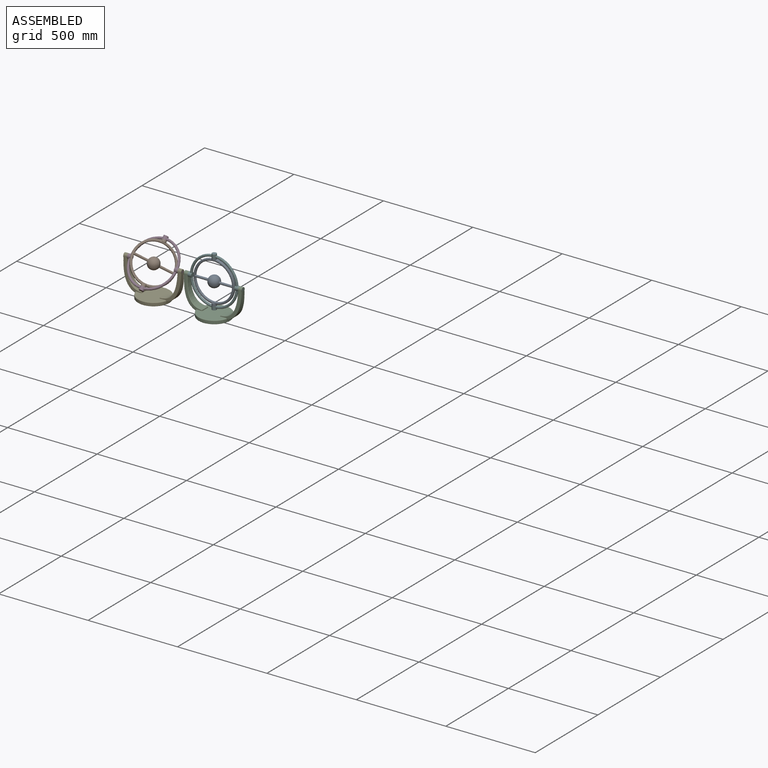
[diagram: assembled view]
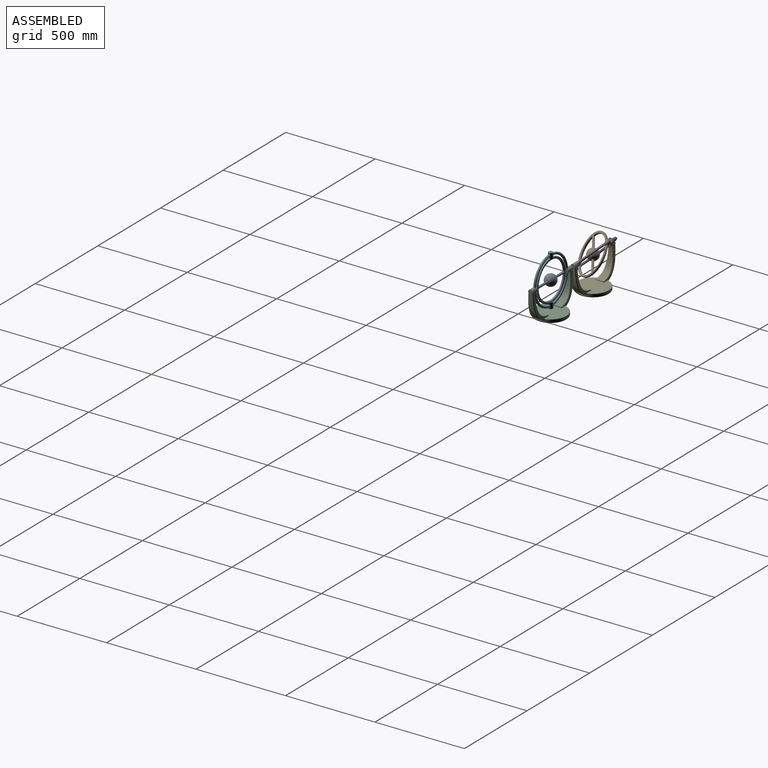
[diagram: assembled view, second angle]
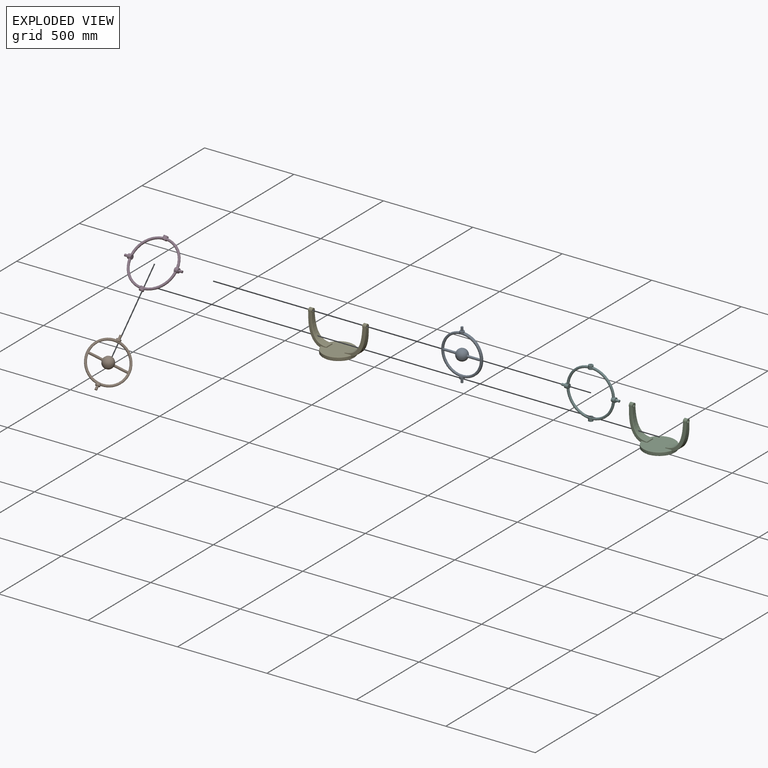
[diagram: exploded view]
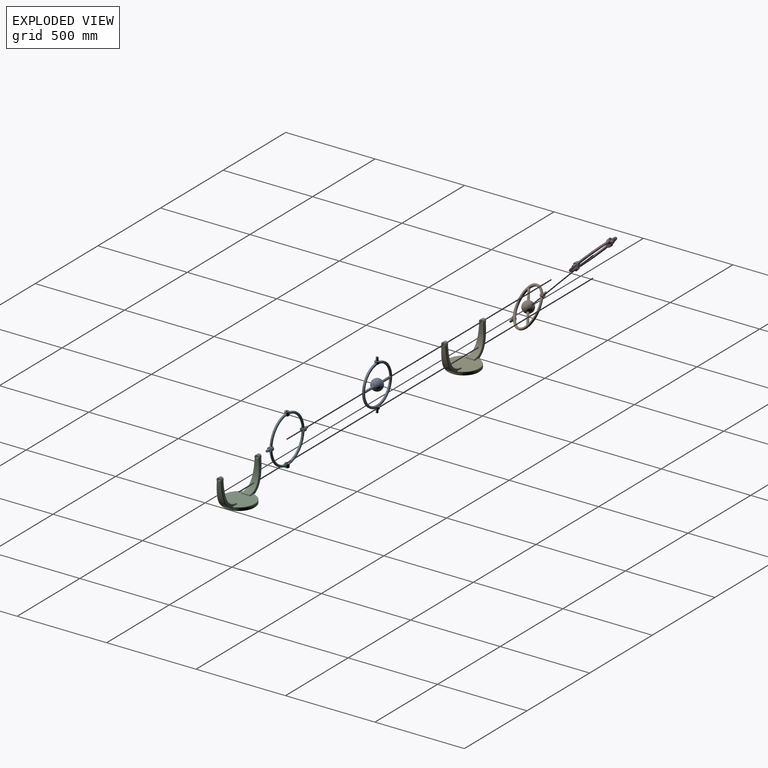
[diagram: exploded view, second angle]
ASSEMBLY  parts=6 mates=4
PART A: 36 faces, bbox 254.2x288.7x69.9 mm
  f0: cylinder r=101.78mm len=203.17mm, axis (0,0,1), area 780.5mm2, adj f18,f19,f22,f34
  f1: cylinder r=101.78mm len=203.17mm, axis (0,0,1), area 780.5mm2, adj f18,f19,f25,f28
  f2: cylinder r=114.48mm len=227.89mm, axis (0,0,1), area 2553.6mm2, adj f4,f6,f12,f32
  f3: cylinder r=114.48mm len=227.55mm, axis (0,0,1), area 849.2mm2, adj f6,f12,f30,f31
  f4: plane 234.27x230.25mm, normal (0,0,-1), area 3391.2mm2, adj f2,f6,f7,f12,f13,f21,f22,f23
  f5: plane 225.17x224.06mm, normal (0,0,1), area 1716.7mm2, adj f6,f9,f12,f15,f24,f25,f26,f31
  f6: cylinder r=12.7mm len=25.4mm, axis (0,1,0), area 879.8mm2, adj f2,f3,f4,f5,f7,f8,f9,f30
  f7: plane 22x6.35mm, normal (0,1,0), area 99.1mm2, adj f4,f6
  f8: plane 25.4x25.4mm, normal (0,-1,0), area 380mm2, adj f6,f10
  f9: plane 22x6.35mm, normal (0,1,0), area 99.1mm2, adj f5,f6
  f10: cylinder r=6.35mm len=20.32mm, axis (0,1,0), area 810.7mm2, adj f8,f11
  f11: plane 12.7x12.7mm, normal (0,-1,0), area 126.7mm2, adj f10
  f12: cylinder r=12.7mm len=25.4mm, axis (0,-1,0), area 879.8mm2, adj f2,f3,f4,f5,f13,f14,f15,f30
  f13: plane 22x6.35mm, normal (0,-1,0), area 99.1mm2, adj f4,f12
  f14: plane 25.4x25.4mm, normal (0,1,0), area 380mm2, adj f12,f16
  f15: plane 22x6.35mm, normal (0,-1,0), area 99.1mm2, adj f5,f12
  f16: cylinder r=6.35mm len=20.32mm, axis (0,-1,0), area 810.7mm2, adj f14,f17
  f17: plane 12.7x12.7mm, normal (0,1,0), area 126.7mm2, adj f16
  f18: cylinder r=6.35mm len=70.67mm, axis (-1,0,0), area 2815.2mm2, adj f0,f1,f20,f21,f26,f29,f33
  f19: cylinder r=6.35mm len=70.67mm, axis (-1,0,0), area 2815.2mm2, adj f0,f1,f20,f23,f24,f27,f35
  f20: sphere r=31.75mm, area 12539.7mm2, adj f18,f19
  f21: bspline ~7.15x5.2mm, area 11.3mm2, adj f4,f18,f22
  f22: torus R=106.86mm, axis (0,0,1), area 2496.5mm2, adj f0,f4,f21,f23
  f23: bspline ~7.67x5.29mm, area 17.3mm2, adj f4,f19,f22
  f24: bspline ~7.67x5.28mm, area 17.3mm2, adj f5,f19,f25
  f25: torus R=106.86mm, axis (0,0,1), area 2496.5mm2, adj f1,f5,f24,f26
  f26: bspline ~7.15x5.2mm, area 11.3mm2, adj f5,f18,f25
  f27: bspline ~7.15x5.2mm, area 11.3mm2, adj f4,f19,f28
  f28: torus R=106.86mm, axis (0,0,1), area 2496.5mm2, adj f1,f4,f27,f29
  f29: bspline ~7.67x5.29mm, area 17.3mm2, adj f4,f18,f28
  f30: torus R=109.4mm, axis (0,0,1), area 2635.5mm2, adj f3,f4,f6,f12
  f31: torus R=109.4mm, axis (0,0,1), area 2635.5mm2, adj f3,f5,f6,f12
  f32: torus R=109.4mm, axis (0,0,1), area 2635.5mm2, adj f2,f5,f6,f12
  f33: bspline ~7.67x5.28mm, area 17.3mm2, adj f5,f18,f34
  f34: torus R=106.86mm, axis (0,0,1), area 2496.5mm2, adj f0,f5,f33,f35
  f35: bspline ~7.15x5.2mm, area 11.3mm2, adj f5,f19,f34
PART B: same geometry as A
PART C: 70 faces, bbox 323.3x192.4x198 mm
  f0: cylinder r=88.9mm len=177.8mm, axis (0,0,1), area 7043.1mm2, adj f31,f35,f42,f43,f44,f46,f47,f51
  f1: plane 25.4x25.4mm, normal (1,0,0), area 380mm2, adj f3,f4,f23,f24
  f2: plane 25.4x25.4mm, normal (-1,0,0), area 380mm2, adj f6,f7,f21,f22
  f3: cylinder r=12.7mm len=25.4mm, axis (-1,0,0), area 856.7mm2, adj f1,f4,f5,f10,f11,f12,f40,f41
  f4: cylinder r=12.7mm len=6.69mm, axis (-1,0,0), area 11.6mm2, adj f1,f3,f54
  f5: plane 25.4x25.4mm, normal (-1,0,0), area 380mm2, adj f3,f24
  f6: cylinder r=12.7mm len=25.4mm, axis (1,0,0), area 856.7mm2, adj f2,f7,f8,f15,f16,f17,f25,f30
  f7: cylinder r=12.7mm len=6.69mm, axis (1,0,0), area 11.6mm2, adj f2,f6,f29
  f8: plane 25.4x25.4mm, normal (1,0,0), area 380mm2, adj f6,f21
  f9: plane 43.78x1.28mm, normal (1,0,0), area 56.1mm2, adj f55,f56,f64,f65
  f10: bspline ~169.06x110.67mm, area 2553.4mm2, adj f3,f40,f41,f43,f49,f56,f57
  f11: bspline ~169.06x110.67mm, area 2553.5mm2, adj f3,f53,f54,f63,f64,f66,f68
  f12: bspline ~169.06x110.67mm, area 5456.1mm2, adj f3,f40,f52,f53
  f13: bspline ~148.74x90.35mm, area 5816.9mm2, adj f23,f41,f54,f55
  f14: plane 43.78x1.28mm, normal (-1,0,0), area 56.1mm2, adj f27,f28,f37,f38
  f15: bspline ~169.06x110.67mm, area 2553.4mm2, adj f6,f25,f27,f30,f31,f32,f36
  f16: bspline ~169.06x110.67mm, area 2553.5mm2, adj f6,f29,f38,f39,f50,f51,f58
  f17: bspline ~169.06x110.67mm, area 5456.1mm2, adj f6,f30,f39,f42
  f18: bspline ~148.74x90.35mm, area 5816.9mm2, adj f22,f25,f28,f29
  f19: plane 171.2x171.2mm, normal (0,0,-1), area 23018.5mm2, adj f69
  f20: plane 171.2x162.55mm, normal (0,0,1), area 18984.1mm2, adj f32,f33,f37,f44,f45,f50,f57,f61
  f21: cylinder r=6.35mm len=20.32mm, axis (-1,0,0), area 810.7mm2, adj f2,f8
  f22: cylinder r=12.7mm len=21.59mm, axis (1,0,0), area 4.5mm2, adj f2,f18,f25,f29
  f23: cylinder r=12.7mm len=21.59mm, axis (-1,0,0), area 4.5mm2, adj f1,f13,f41,f54
  f24: cylinder r=6.35mm len=20.32mm, axis (1,0,0), area 810.7mm2, adj f1,f5
  f25: bspline ~173.33x93.9mm, area 1001.5mm2, adj f6,f15,f18,f22,f26
  f26: sphere r=3.3mm, area 11mm2, adj f25,f27,f28
  f27: bspline ~7.15x3.52mm, area 6.9mm2, adj f14,f15,f26,f33
  f28: bspline ~60.04x3.29mm, area 216.1mm2, adj f14,f18,f26,f34
  f29: bspline ~173.35x93.86mm, area 1001.5mm2, adj f7,f16,f18,f22,f34
  f30: bspline ~172.22x79.13mm, area 965.3mm2, adj f6,f15,f17,f35
  f31: bspline ~7.08x3.02mm, area 1mm2, adj f0,f15,f35,f36
  f32: bspline ~49.28x6.26mm, area 138.3mm2, adj f15,f20,f33,f36
  f33: bspline ~8.09x7.74mm, area 38.1mm2, adj f20,f27,f32,f37
  f34: sphere r=3.3mm, area 11mm2, adj f28,f29,f38
  f35: bspline ~8.09x6.73mm, area 29.1mm2, adj f0,f30,f31,f42
  f36: bspline ~7.84x6.97mm, area 34.3mm2, adj f15,f31,f32,f44
  f37: cylinder r=3.3mm len=43.78mm, axis (0,-1,0), area 227.1mm2, adj f14,f20,f33,f45
  f38: bspline ~7.15x3.52mm, area 6.9mm2, adj f14,f16,f34,f45
  f39: bspline ~172.26x79.16mm, area 965.3mm2, adj f6,f16,f17,f46
  f40: bspline ~172.22x79.13mm, area 965.3mm2, adj f3,f10,f12,f47
  f41: bspline ~173.33x93.9mm, area 1001.5mm2, adj f3,f10,f13,f23,f48
  f42: bspline ~50.05x6.03mm, area 161.3mm2, adj f0,f17,f35,f46
  f43: bspline ~7.08x3.02mm, area 1mm2, adj f0,f10,f47,f49
  f44: torus R=85.6mm, axis (0,0,-1), area 1154.9mm2, adj f0,f20,f36,f49
  f45: bspline ~7.39x7.35mm, area 38.1mm2, adj f20,f37,f38,f50
  f46: bspline ~7.82x6.92mm, area 29.1mm2, adj f0,f39,f42,f51
  f47: bspline ~7.82x6.92mm, area 29.1mm2, adj f0,f40,f43,f52
  f48: sphere r=3.3mm, area 11mm2, adj f41,f55,f56
  f49: bspline ~8.73x6.96mm, area 34.3mm2, adj f10,f43,f44,f57
  f50: bspline ~43.07x5.88mm, area 138.4mm2, adj f16,f20,f45,f58
  f51: bspline ~7.08x3.02mm, area 1mm2, adj f0,f16,f46,f58
  f52: bspline ~50.05x6.03mm, area 161.3mm2, adj f0,f12,f47,f59
  f53: bspline ~172.26x79.16mm, area 965.3mm2, adj f3,f11,f12,f59
  f54: bspline ~173.35x93.86mm, area 1001.5mm2, adj f4,f11,f13,f23,f60
  f55: bspline ~60.04x3.29mm, area 216.1mm2, adj f9,f13,f48,f60
  f56: bspline ~7.15x3.52mm, area 6.9mm2, adj f9,f10,f48,f61
  f57: bspline ~43.07x5.88mm, area 138.4mm2, adj f10,f20,f49,f61
  f58: bspline ~7.47x6.96mm, area 34.3mm2, adj f16,f50,f51,f62
  f59: bspline ~8.09x6.73mm, area 29.1mm2, adj f0,f52,f53,f63
  f60: sphere r=3.3mm, area 11mm2, adj f54,f55,f64
  f61: bspline ~7.39x7.35mm, area 38.1mm2, adj f20,f56,f57,f65
  f62: torus R=85.6mm, axis (0,0,-1), area 1154.9mm2, adj f0,f20,f58,f66
  f63: bspline ~7.08x3.02mm, area 1mm2, adj f0,f11,f59,f66
  f64: bspline ~7.15x3.52mm, area 6.9mm2, adj f9,f11,f60,f67
  f65: cylinder r=3.3mm len=43.78mm, axis (0,1,0), area 227.1mm2, adj f9,f20,f61,f67
  f66: bspline ~7.84x6.97mm, area 34.3mm2, adj f11,f62,f63,f68
  f67: bspline ~8.09x7.74mm, area 38.1mm2, adj f20,f64,f65,f68
  f68: bspline ~49.3x6.26mm, area 138.3mm2, adj f11,f20,f66,f67
  f69: torus R=85.6mm, axis (0,0,-1), area 2858.1mm2, adj f0,f19
PART D: 50 faces, bbox 322.9x289.4x25.4 mm
  f0: cylinder r=6.35mm len=20.32mm, axis (-1,0,0), area 810.7mm2, adj f1,f4
  f1: plane 12.7x12.7mm, normal (1,0,0), area 126.7mm2, adj f0
  f2: cylinder r=12.7mm len=25.4mm, axis (1,0,0), area 1331.1mm2, adj f3,f4,f5,f6,f7,f8,f28,f29
  f3: plane 25.4x25.4mm, normal (-1,0,0), area 506.7mm2, adj f2
  f4: plane 25.4x25.4mm, normal (1,0,0), area 380mm2, adj f0,f2
  f5: cylinder r=134.19mm len=120.96mm, axis (0,0,-1), area 470.9mm2, adj f2,f9,f38,f39
  f6: plane 117.64x117.64mm, normal (0,0,1), area 454.1mm2, adj f2,f9,f38,f40
  f7: plane 117.64x117.64mm, normal (0,0,-1), area 454.1mm2, adj f2,f9,f39,f41
  f8: cylinder r=121.49mm len=108.2mm, axis (0,0,-1), area 420.3mm2, adj f2,f9,f40,f41
  f9: cylinder r=12.7mm len=25.4mm, axis (0,-1,0), area 1331.1mm2, adj f5,f6,f7,f8,f10,f11,f12,f13
  f10: plane 25.4x25.4mm, normal (0,1,0), area 380mm2, adj f9,f33
  f11: plane 25.4x25.4mm, normal (0,-1,0), area 380mm2, adj f9,f33
  f12: cylinder r=134.19mm len=120.96mm, axis (0,0,-1), area 470.9mm2, adj f9,f16,f42,f43
  f13: plane 117.64x117.64mm, normal (0,0,1), area 454.1mm2, adj f9,f16,f42,f45
  f14: plane 117.64x117.64mm, normal (0,0,-1), area 454.1mm2, adj f9,f16,f43,f44
  f15: cylinder r=121.49mm len=108.2mm, axis (0,0,-1), area 420.3mm2, adj f9,f16,f44,f45
  f16: cylinder r=12.7mm len=25.4mm, axis (-1,0,0), area 1331.1mm2, adj f12,f13,f14,f15,f17,f18,f21,f22
  f17: plane 25.4x25.4mm, normal (1,0,0), area 506.7mm2, adj f16
  f18: plane 25.4x25.4mm, normal (-1,0,0), area 380mm2, adj f16,f19
  f19: cylinder r=6.35mm len=20.32mm, axis (1,0,0), area 810.7mm2, adj f18,f20
  f20: plane 12.7x12.7mm, normal (-1,0,0), area 126.7mm2, adj f19
  f21: cylinder r=134.19mm len=120.96mm, axis (0,0,-1), area 470.9mm2, adj f16,f25,f46,f48
  f22: plane 117.64x117.64mm, normal (0,0,1), area 454.1mm2, adj f16,f25,f48,f49
  f23: plane 117.64x117.64mm, normal (0,0,-1), area 454.1mm2, adj f16,f25,f46,f47
  f24: cylinder r=121.49mm len=108.2mm, axis (0,0,-1), area 420.3mm2, adj f16,f25,f47,f49
  f25: cylinder r=12.7mm len=25.4mm, axis (0,1,0), area 1331.1mm2, adj f21,f22,f23,f24,f26,f27,f28,f29
  f26: plane 25.4x25.4mm, normal (0,-1,0), area 380mm2, adj f25,f32
  f27: plane 25.4x25.4mm, normal (0,1,0), area 380mm2, adj f25,f32
  f28: cylinder r=134.19mm len=120.96mm, axis (0,0,-1), area 470.9mm2, adj f2,f25,f34,f35
  f29: cylinder r=121.49mm len=108.2mm, axis (0,0,-1), area 420.3mm2, adj f2,f25,f36,f37
  f30: plane 117.64x117.64mm, normal (0,0,1), area 454.1mm2, adj f2,f25,f34,f36
  f31: plane 117.64x117.64mm, normal (0,0,-1), area 454.1mm2, adj f2,f25,f35,f37
  f32: cylinder r=6.35mm len=20.32mm, axis (0,-1,0), area 810.7mm2, adj f26,f27
  f33: cylinder r=6.35mm len=20.32mm, axis (0,1,0), area 810.7mm2, adj f10,f11
  f34: torus R=129.11mm, axis (0,0,1), area 1471mm2, adj f2,f25,f28,f30
  f35: torus R=129.11mm, axis (0,0,1), area 1471mm2, adj f2,f25,f28,f31
  f36: torus R=126.57mm, axis (0,0,1), area 1358mm2, adj f2,f25,f29,f30
  f37: torus R=126.57mm, axis (0,0,1), area 1358mm2, adj f2,f25,f29,f31
  f38: torus R=129.11mm, axis (0,0,1), area 1471mm2, adj f2,f5,f6,f9
  f39: torus R=129.11mm, axis (0,0,1), area 1471mm2, adj f2,f5,f7,f9
  f40: torus R=126.57mm, axis (0,0,1), area 1358mm2, adj f2,f6,f8,f9
  f41: torus R=126.57mm, axis (0,0,1), area 1358mm2, adj f2,f7,f8,f9
  f42: torus R=129.11mm, axis (0,0,1), area 1471mm2, adj f9,f12,f13,f16
  f43: torus R=129.11mm, axis (0,0,1), area 1471mm2, adj f9,f12,f14,f16
  f44: torus R=126.57mm, axis (0,0,1), area 1358mm2, adj f9,f14,f15,f16
  f45: torus R=126.57mm, axis (0,0,1), area 1358mm2, adj f9,f13,f15,f16
  f46: torus R=129.11mm, axis (0,0,1), area 1471mm2, adj f16,f21,f23,f25
  f47: torus R=126.57mm, axis (0,0,1), area 1358mm2, adj f16,f23,f24,f25
  f48: torus R=129.11mm, axis (0,0,1), area 1471mm2, adj f16,f21,f22,f25
  f49: torus R=126.57mm, axis (0,0,1), area 1358mm2, adj f16,f22,f24,f25
PART E: same geometry as C
PART F: same geometry as D
PLACE A rot(axis=(1,0,0),90deg) t=(-45.21,0,0)mm
PLACE B rot(axis=(0.15,-0.91,-0.38),140.5deg) t=(-383.79,0,0)mm
PLACE C t=(-45.21,0,0)mm fixed
PLACE D rot(axis=(1,0,0),45deg) t=(-383.79,0,0)mm
PLACE E t=(-383.79,0,0)mm fixed
PLACE F rot(axis=(1,0,0),90deg) t=(-45.21,0,0)mm
MATE revolute B.f10 <-> D.f9  axis (0,-0.71,-0.71) through (-383.79,-99.81,-99.81)mm
MATE revolute D.f19 <-> E.f24  axis (-1,0,0) through (-545.26,0,0)mm
MATE revolute A.f10 <-> F.f9  axis (0,0,-1) through (-45.21,0,-141.15)mm
MATE revolute C.f21 <-> F.f0  axis (1,0,0) through (116.25,0,0)mm
